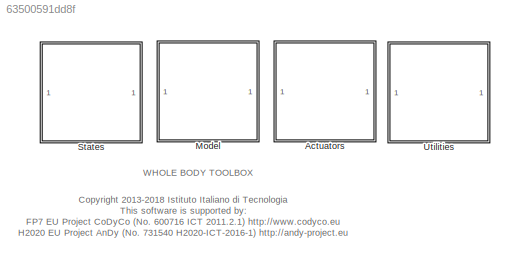
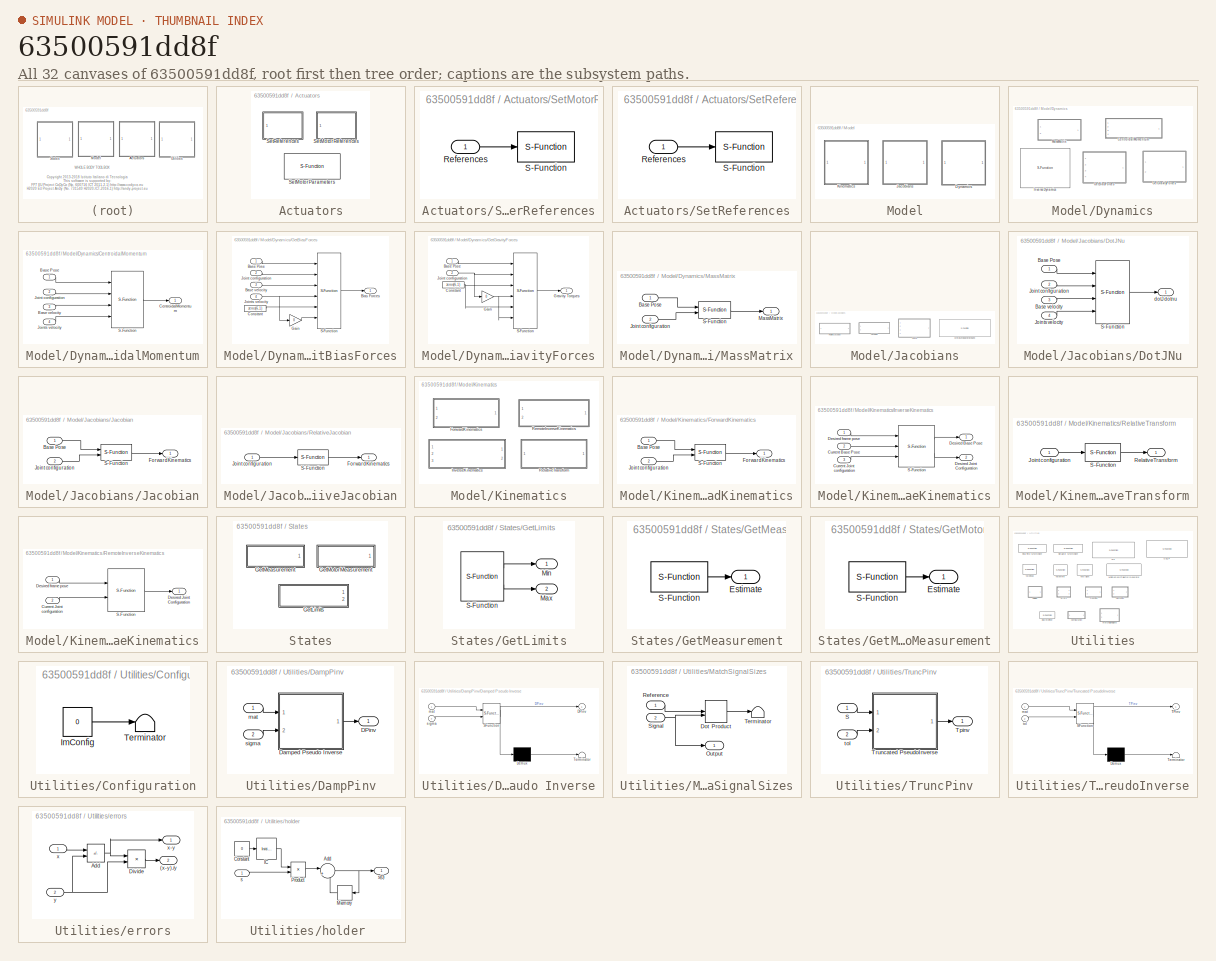
[diagram: thumbnail index - all 32 canvases of the model, root first then tree order]
MODEL slx_63500591dd8f
KIND library
CONFIG AbsTol = auto
CONFIG EnableMultiTasking = on
CONFIG FixedStep = auto
CONFIG MaxStep = auto
CONFIG MinStep = auto
CONFIG RelTol = 1e-3
CONFIG SampleTimeConstraint = Unconstrained
CONFIG SolverName = ode45
CONFIG StartTime = 0.0
CONFIG StopTime = 10.0
BLOCK [SubSystem] Actuators
  Ports = []
  RequestExecContextInheritance = off
BLOCK [S-Function] Actuators/SetMotorParameters
  EnableBusSupport = off
  FunctionName = BlockFactory
  Parameters = 'SetMotorParameters','WBToolbox',WBTConfigParameters,configBlockAbsName,readP,readI,readD,pidType,setKTau,kTau,setBemf,bemf
  Ports = [1, 1]
  SFcnIsStateOwnerBlock = off
  SFunctionDeploymentMode = off
BLOCK [SubSystem] Actuators/SetMotorReferences
  Ports = [1]
  RequestExecContextInheritance = off
BLOCK [Inport] Actuators/SetMotorReferences/References
BLOCK [S-Function] Actuators/SetMotorReferences/S-Function
  EnableBusSupport = off
  FunctionName = BlockFactory
  Parameters = 'SetReferences','WBToolbox',WBTConfigParameters,configBlockAbsName,controlType,refSpeed
  Ports = [1]
  SFcnIsStateOwnerBlock = off
  SFunctionDeploymentMode = off
BLOCK [SubSystem] Actuators/SetReferences
  Ports = [1]
  RequestExecContextInheritance = off
BLOCK [Inport] Actuators/SetReferences/References
BLOCK [S-Function] Actuators/SetReferences/S-Function
  EnableBusSupport = off
  FunctionName = BlockFactory
  Parameters = 'SetReferences','WBToolbox',WBTConfigParameters,configBlockAbsName,controlType,refTrajectory
  Ports = [1]
  SFcnIsStateOwnerBlock = off
  SFunctionDeploymentMode = off
BLOCK [SubSystem] Model
  Ports = []
  RequestExecContextInheritance = off
BLOCK [SubSystem] Model/Dynamics
  Ports = []
  RequestExecContextInheritance = off
BLOCK [SubSystem] Model/Dynamics/CentroidalMomentum
  Ports = [4, 1]
  RequestExecContextInheritance = off
BLOCK [Inport] Model/Dynamics/CentroidalMomentum/Base Pose
BLOCK [Inport] Model/Dynamics/CentroidalMomentum/Base velocity
  Port = 3
BLOCK [Outport] Model/Dynamics/CentroidalMomentum/CentroidalMomentum
BLOCK [Inport] Model/Dynamics/CentroidalMomentum/Joint configuration
  Port = 2
BLOCK [Inport] Model/Dynamics/CentroidalMomentum/Joints velocity
  Port = 4
BLOCK [S-Function] Model/Dynamics/CentroidalMomentum/S-Function
  EnableBusSupport = off
  FunctionName = BlockFactory
  Parameters = 'CentroidalMomentum','WBToolbox',WBTConfigParameters,configBlockAbsName
  Ports = [4, 1]
  SFcnIsStateOwnerBlock = off
  SFunctionDeploymentMode = off
BLOCK [SubSystem] Model/Dynamics/GetBiasForces
  Ports = [4, 1]
  RequestExecContextInheritance = off
BLOCK [Inport] Model/Dynamics/GetBiasForces/Base Pose
BLOCK [Inport] Model/Dynamics/GetBiasForces/Base velocity
  Port = 3
BLOCK [Outport] Model/Dynamics/GetBiasForces/Bias Forces
BLOCK [Constant] Model/Dynamics/GetBiasForces/Constant
  Value = zeros(6,1)
BLOCK [Gain] Model/Dynamics/GetBiasForces/Gain
  Gain = 0
BLOCK [Inport] Model/Dynamics/GetBiasForces/Joint configuration
  Port = 2
BLOCK [Inport] Model/Dynamics/GetBiasForces/Joints velocity
  Port = 4
BLOCK [S-Function] Model/Dynamics/GetBiasForces/S-Function
  EnableBusSupport = off
  FunctionName = BlockFactory
  Parameters = 'InverseDynamics','WBToolbox',WBTConfigParameters,configBlockAbsName
  Ports = [6, 1]
  SFcnIsStateOwnerBlock = off
  SFunctionDeploymentMode = off
BLOCK [SubSystem] Model/Dynamics/GetGravityForces
  Ports = [2, 1]
  RequestExecContextInheritance = off
BLOCK [Inport] Model/Dynamics/GetGravityForces/Base Pose
BLOCK [Constant] Model/Dynamics/GetGravityForces/Constant
  Value = zeros(6,1)
BLOCK [Gain] Model/Dynamics/GetGravityForces/Gain
  Gain = 0
BLOCK [Outport] Model/Dynamics/GetGravityForces/Gravity Torques
BLOCK [Inport] Model/Dynamics/GetGravityForces/Joint configuration
  Port = 2
BLOCK [S-Function] Model/Dynamics/GetGravityForces/S-Function
  EnableBusSupport = off
  FunctionName = BlockFactory
  Parameters = 'InverseDynamics','WBToolbox',WBTConfigParameters,configBlockAbsName
  Ports = [6, 1]
  SFcnIsStateOwnerBlock = off
  SFunctionDeploymentMode = off
BLOCK [S-Function] Model/Dynamics/InverseDynamics
  EnableBusSupport = off
  FunctionName = BlockFactory
  Parameters = 'InverseDynamics','WBToolbox',WBTConfigParameters,configBlockAbsName
  Ports = [6, 1]
  SFcnIsStateOwnerBlock = off
  SFunctionDeploymentMode = off
BLOCK [SubSystem] Model/Dynamics/MassMatrix
  Ports = [2, 1]
  RequestExecContextInheritance = off
BLOCK [Inport] Model/Dynamics/MassMatrix/Base Pose
BLOCK [Inport] Model/Dynamics/MassMatrix/Joint configuration
  Port = 2
BLOCK [Outport] Model/Dynamics/MassMatrix/MassMatrix
BLOCK [S-Function] Model/Dynamics/MassMatrix/S-Function
  EnableBusSupport = off
  FunctionName = BlockFactory
  Parameters = 'MassMatrix','WBToolbox',WBTConfigParameters,configBlockAbsName
  Ports = [2, 1]
  SFcnIsStateOwnerBlock = off
  SFunctionDeploymentMode = off
BLOCK [SubSystem] Model/Jacobians
  Ports = []
  RequestExecContextInheritance = off
BLOCK [S-Function] Model/Jacobians/CentroidalTotalMomentumMatrix
  EnableBusSupport = off
  FunctionName = BlockFactory
  Parameters = 'CentroidalTotalMomentumMatrix', 'WBToolbox', WBTConfigParameters, configBlockAbsName
  Ports = [2, 1]
  SFcnIsStateOwnerBlock = off
  SFunctionDeploymentMode = off
BLOCK [SubSystem] Model/Jacobians/DotJNu
  Ports = [4, 1]
  RequestExecContextInheritance = off
BLOCK [Inport] Model/Jacobians/DotJNu/Base Pose
BLOCK [Inport] Model/Jacobians/DotJNu/Base velocity
  Port = 3
BLOCK [Inport] Model/Jacobians/DotJNu/Joint configuration
  Port = 2
BLOCK [Inport] Model/Jacobians/DotJNu/Joints velocity
  Port = 4
BLOCK [S-Function] Model/Jacobians/DotJNu/S-Function
  EnableBusSupport = off
  FunctionName = BlockFactory
  Parameters = 'DotJNu','WBToolbox',WBTConfigParameters,configBlockAbsName,frameName
  Ports = [4, 1]
  SFcnIsStateOwnerBlock = off
  SFunctionDeploymentMode = off
BLOCK [Outport] Model/Jacobians/DotJNu/dotJ dotnu
BLOCK [SubSystem] Model/Jacobians/Jacobian
  Ports = [2, 1]
  RequestExecContextInheritance = off
BLOCK [Inport] Model/Jacobians/Jacobian/Base Pose
BLOCK [Outport] Model/Jacobians/Jacobian/ForwardKinematics
BLOCK [Inport] Model/Jacobians/Jacobian/Joint configuration
  Port = 2
BLOCK [S-Function] Model/Jacobians/Jacobian/S-Function
  EnableBusSupport = off
  FunctionName = BlockFactory
  Parameters = 'Jacobian','WBToolbox',WBTConfigParameters,configBlockAbsName,frameName
  Ports = [2, 1]
  SFcnIsStateOwnerBlock = off
  SFunctionDeploymentMode = off
BLOCK [SubSystem] Model/Jacobians/RelativeJacobian
  Ports = [1, 1]
  RequestExecContextInheritance = off
BLOCK [Outport] Model/Jacobians/RelativeJacobian/ForwardKinematics
BLOCK [Inport] Model/Jacobians/RelativeJacobian/Joint configuration
BLOCK [S-Function] Model/Jacobians/RelativeJacobian/S-Function
  EnableBusSupport = off
  FunctionName = BlockFactory
  Parameters = 'RelativeJacobian','WBToolbox',WBTConfigParameters,configBlockAbsName,frameName1,frameName2
  Ports = [1, 1]
  SFcnIsStateOwnerBlock = off
  SFunctionDeploymentMode = off
BLOCK [SubSystem] Model/Kinematics
  Ports = []
  RequestExecContextInheritance = off
BLOCK [SubSystem] Model/Kinematics/ForwardKinematics
  Ports = [2, 1]
  RequestExecContextInheritance = off
BLOCK [Inport] Model/Kinematics/ForwardKinematics/Base Pose
BLOCK [Outport] Model/Kinematics/ForwardKinematics/ForwardKinematics
BLOCK [Inport] Model/Kinematics/ForwardKinematics/Joint configuration
  Port = 2
BLOCK [S-Function] Model/Kinematics/ForwardKinematics/S-Function
  EnableBusSupport = off
  FunctionName = BlockFactory
  Parameters = 'ForwardKinematics','WBToolbox',WBTConfigParameters,configBlockAbsName,frameName
  Ports = [2, 1]
  SFcnIsStateOwnerBlock = off
  SFunctionDeploymentMode = off
BLOCK [SubSystem] Model/Kinematics/InverseKinematics
  Commented = on
  InitFcn = if ~exist('WBT_robotName','var')\n    WBT_robotName = '';\nend\nif ~exist('WBT_modelName','var')\n    WBT_modelName = 'WBT_simulink';\nend\nif ~exist('WBT_wbiFilename','var')\n    WBT_wbiFilename = 'yarpWholeBodyInterface.ini';\nend\nif ~exist('WBT_wbiList','var')\n    WBT_wbiList = 'ROBOT_TORQUE_CONTROL_JOINTS';\nend
  Ports = [3, 2]
  RequestExecContextInheritance = off
BLOCK [Inport] Model/Kinematics/InverseKinematics/Current Base Pose
  Port = 2
BLOCK [Inport] Model/Kinematics/InverseKinematics/Current Joint configuration
  Port = 3
BLOCK [Outport] Model/Kinematics/InverseKinematics/Desired Base Pose
BLOCK [Outport] Model/Kinematics/InverseKinematics/Desired Joint Configuration
  Port = 2
BLOCK [Inport] Model/Kinematics/InverseKinematics/Desired frame pose
BLOCK [S-Function] Model/Kinematics/InverseKinematics/S-Function
  EnableBusSupport = off
  FunctionName = WBToolbox
  Parameters = 'InverseKinematics',robotName,localName,wbiFile,wbiList,baseFrame, endEffFrame,optOption
  Ports = [3, 2]
  SFcnIsStateOwnerBlock = off
  SFunctionDeploymentMode = off
BLOCK [SubSystem] Model/Kinematics/RelativeTransform
  Ports = [1, 1]
  RequestExecContextInheritance = off
BLOCK [Inport] Model/Kinematics/RelativeTransform/Joint configuration
BLOCK [Outport] Model/Kinematics/RelativeTransform/RelativeTransform
BLOCK [S-Function] Model/Kinematics/RelativeTransform/S-Function
  EnableBusSupport = off
  FunctionName = BlockFactory
  Parameters = 'RelativeTransform','WBToolbox',WBTConfigParameters,configBlockAbsName,frame1, frame2
  Ports = [1, 1]
  SFcnIsStateOwnerBlock = off
  SFunctionDeploymentMode = off
BLOCK [SubSystem] Model/Kinematics/RemoteInverseKinematics
  Commented = on
  InitFcn = if ~exist('WBT_robotName','var')\n    WBT_robotName = '';\nend\nif ~exist('WBT_modelName','var')\n    WBT_modelName = 'WBT_simulink';\nend\nif ~exist('WBT_wbiFilename','var')\n    WBT_wbiFilename = 'yarpWholeBodyInterface.ini';\nend\nif ~exist('WBT_wbiList','var')\n    WBT_wbiList = 'ROBOT_TORQUE_CONTROL_JOINTS';\nend
  Ports = [2, 1]
  RequestExecContextInheritance = off
BLOCK [Inport] Model/Kinematics/RemoteInverseKinematics/Current Joint configuration
  Port = 2
BLOCK [Outport] Model/Kinematics/RemoteInverseKinematics/Desired Joint Configuration
BLOCK [Inport] Model/Kinematics/RemoteInverseKinematics/Desired frame pose
BLOCK [S-Function] Model/Kinematics/RemoteInverseKinematics/S-Function
  EnableBusSupport = off
  FunctionName = WBToolbox
  Parameters = 'RemoteInverseKinematics',solverName, dofs, optOption
  Ports = [2, 1]
  SFcnIsStateOwnerBlock = off
  SFunctionDeploymentMode = off
BLOCK [SubSystem] States
  Ports = []
  RequestExecContextInheritance = off
BLOCK [SubSystem] States/GetLimits
  Ports = [0, 2]
  RequestExecContextInheritance = off
BLOCK [Outport] States/GetLimits/Max
  Port = 2
BLOCK [Outport] States/GetLimits/Min
BLOCK [S-Function] States/GetLimits/S-Function
  EnableBusSupport = off
  FunctionName = BlockFactory
  Parameters = 'GetLimits','WBToolbox',WBTConfigParameters,configBlockAbsName,limitsType
  Ports = [0, 2]
  SFcnIsStateOwnerBlock = off
  SFunctionDeploymentMode = off
BLOCK [SubSystem] States/GetMeasurement
  Ports = [0, 1]
  RequestExecContextInheritance = off
BLOCK [Outport] States/GetMeasurement/Estimate
BLOCK [S-Function] States/GetMeasurement/S-Function
  EnableBusSupport = off
  FunctionName = BlockFactory
  Parameters = 'GetMeasurement','WBToolbox',WBTConfigParameters,configBlockAbsName,measuredType
  Ports = [0, 1]
  SFcnIsStateOwnerBlock = off
  SFunctionDeploymentMode = off
BLOCK [SubSystem] States/GetMotorMeasurement
  Ports = [0, 1]
  RequestExecContextInheritance = off
BLOCK [Outport] States/GetMotorMeasurement/Estimate
BLOCK [S-Function] States/GetMotorMeasurement/S-Function
  EnableBusSupport = off
  FunctionName = BlockFactory
  Parameters = 'GetMeasurement','WBToolbox',WBTConfigParameters,configBlockAbsName,measuredType
  Ports = [0, 1]
  SFcnIsStateOwnerBlock = off
  SFunctionDeploymentMode = off
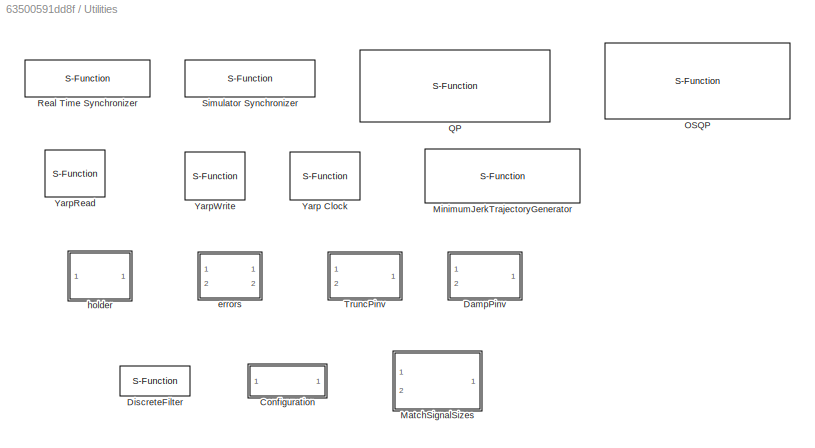
BLOCK [SubSystem] Utilities
  Ports = []
  RequestExecContextInheritance = off
BLOCK [SubSystem] Utilities/Configuration
  InitFcn = source = get_param(gcb,'ConfigSource');\n\nif strcmp(source, 'Workspace')\n    object = get_param(gcb,'ConfigObject');\n    WBToolbox.ConfigurationToMask(gcb, object);\nend\n\nWBToolbox.MaskToConfiguration(gcb);\n\nclear object source
  Ports = []
  RequestExecContextInheritance = off
BLOCK [Constant] Utilities/Configuration/ImConfig
  Value = 0
BLOCK [Terminator] Utilities/Configuration/Terminator
BLOCK [SubSystem] Utilities/DampPinv
  Ports = [2, 1]
  RequestExecContextInheritance = off
BLOCK [Outport] Utilities/DampPinv/DPinv
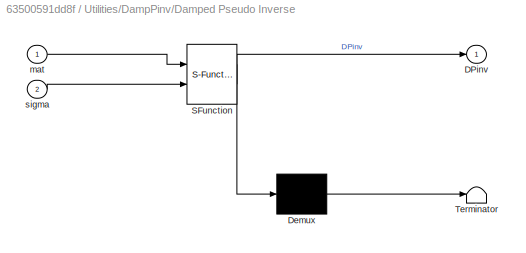
BLOCK [SubSystem] Utilities/DampPinv/Damped Pseudo Inverse
  ErrorFcn = Stateflow.Translate.translate
  PermitHierarchicalResolution = ExplicitOnly
  Ports = [2, 1]
  RequestExecContextInheritance = off
  SFBlockType = MATLAB Function
  TreatAsAtomicUnit = on
BLOCK [Demux] Utilities/DampPinv/Damped Pseudo Inverse/ Demux 
  Outputs = 1
  Ports = [1, 1]
BLOCK [S-Function] Utilities/DampPinv/Damped Pseudo Inverse/ SFunction 
  EnableBusSupport = off
  FunctionName = sf_sfun
  PortCounts = [2 2]
  Ports = [2, 2]
  SFcnIsStateOwnerBlock = off
  SFunctionDeploymentMode = off
  Tag = Stateflow S-Function WBToolboxLibrary 6
BLOCK [Terminator] Utilities/DampPinv/Damped Pseudo Inverse/ Terminator 
BLOCK [Outport] Utilities/DampPinv/Damped Pseudo Inverse/DPinv
BLOCK [Inport] Utilities/DampPinv/Damped Pseudo Inverse/mat
BLOCK [Inport] Utilities/DampPinv/Damped Pseudo Inverse/sigma
  Port = 2
BLOCK [Inport] Utilities/DampPinv/mat
BLOCK [Inport] Utilities/DampPinv/sigma
  Port = 2
BLOCK [S-Function] Utilities/DiscreteFilter
  EnableBusSupport = off
  FunctionName = BlockFactory
  Parameters = 'DiscreteFilter','WBToolbox',filterDataStruct
  Ports = [1, 1]
  SFcnIsStateOwnerBlock = off
  SFunctionDeploymentMode = off
BLOCK [SubSystem] Utilities/MatchSignalSizes
  Ports = [2, 1]
  RequestExecContextInheritance = off
BLOCK [DotProduct] Utilities/MatchSignalSizes/Dot Product
  OutDataTypeStr = Inherit: Inherit via internal rule
BLOCK [Outport] Utilities/MatchSignalSizes/Output
BLOCK [Inport] Utilities/MatchSignalSizes/Reference
BLOCK [Inport] Utilities/MatchSignalSizes/Signal
  Port = 2
BLOCK [Terminator] Utilities/MatchSignalSizes/Terminator
BLOCK [S-Function] Utilities/MinimumJerkTrajectoryGenerator
  EnableBusSupport = off
  FunctionName = BlockFactory
  Parameters = 'MinimumJerkTrajectoryGenerator','WBToolbox',sampleTime,settlingTime,firstDerivatives,secondDerivatives,explicitInitialValue,externalSettlingTime,resetOnSettlingTime
  Ports = [1, 3]
  SFcnIsStateOwnerBlock = off
  SFunctionDeploymentMode = off
BLOCK [S-Function] Utilities/OSQP
  EnableBusSupport = off
  FunctionName = BlockFactory
  Parameters = 'OSQP','WBToolbox',lbA,ubA,lb,ub,computeObjVal,stopIfFails,adaptiveRho,polish,maxIterations
  Ports = [4, 2]
  SFcnIsStateOwnerBlock = off
  SFunctionDeploymentMode = off
BLOCK [S-Function] Utilities/QP
  EnableBusSupport = off
  FunctionName = BlockFactory
  Parameters = 'QpOases','WBToolbox',lbA,ubA,lb,ub,computeObjVal,stopIfFails
  Ports = [4, 2]
  SFcnIsStateOwnerBlock = off
  SFunctionDeploymentMode = off
BLOCK [S-Function] Utilities/Real Time Synchronizer
  EnableBusSupport = off
  FunctionName = BlockFactory
  Parameters = 'RealTimeSynchronizer','WBToolbox',period
  Ports = []
  SFcnIsStateOwnerBlock = off
  SFunctionDeploymentMode = off
BLOCK [S-Function] Utilities/Simulator Synchronizer
  EnableBusSupport = off
  FunctionName = BlockFactory
  Parameters = 'SimulatorSynchronizer','WBToolbox',period, serverPortName, clientPortName
  Ports = []
  SFcnIsStateOwnerBlock = off
  SFunctionDeploymentMode = off
BLOCK [SubSystem] Utilities/TruncPinv
  Ports = [2, 1]
  RequestExecContextInheritance = off
BLOCK [Inport] Utilities/TruncPinv/S
BLOCK [Outport] Utilities/TruncPinv/Tpinv
BLOCK [SubSystem] Utilities/TruncPinv/Truncated PseudoInverse
  ErrorFcn = Stateflow.Translate.translate
  PermitHierarchicalResolution = ExplicitOnly
  Ports = [2, 1]
  RequestExecContextInheritance = off
  SFBlockType = MATLAB Function
  TreatAsAtomicUnit = on
BLOCK [Demux] Utilities/TruncPinv/Truncated PseudoInverse/ Demux 
  Outputs = 1
  Ports = [1, 1]
BLOCK [S-Function] Utilities/TruncPinv/Truncated PseudoInverse/ SFunction 
  EnableBusSupport = off
  FunctionName = sf_sfun
  PortCounts = [2 2]
  Ports = [2, 2]
  SFcnIsStateOwnerBlock = off
  SFunctionDeploymentMode = off
  Tag = Stateflow S-Function WBToolboxLibrary 7
BLOCK [Terminator] Utilities/TruncPinv/Truncated PseudoInverse/ Terminator 
BLOCK [Outport] Utilities/TruncPinv/Truncated PseudoInverse/TPinv
BLOCK [Inport] Utilities/TruncPinv/Truncated PseudoInverse/mat
BLOCK [Inport] Utilities/TruncPinv/Truncated PseudoInverse/tol
  Port = 2
BLOCK [Inport] Utilities/TruncPinv/tol
  Port = 2
BLOCK [S-Function] Utilities/Yarp Clock
  EnableBusSupport = off
  FunctionName = BlockFactory
  Parameters = 'YarpClock','WBToolbox'
  Ports = [0, 1]
  SFcnIsStateOwnerBlock = off
  SFunctionDeploymentMode = off
BLOCK [S-Function] Utilities/YarpRead
  EnableBusSupport = off
  FunctionName = BlockFactory
  Parameters = 'YarpRead','WBToolbox',portName,signalSize,blocking,timestamp,autoconnect,errorOnConnection,timeout
  Ports = [0, 2]
  SFcnIsStateOwnerBlock = off
  SFunctionDeploymentMode = off
BLOCK [S-Function] Utilities/YarpWrite
  EnableBusSupport = off
  FunctionName = BlockFactory
  Parameters = 'YarpWrite','WBToolbox',portName,autoconnect,errorOnConnection
  Ports = [1]
  SFcnIsStateOwnerBlock = off
  SFunctionDeploymentMode = off
BLOCK [SubSystem] Utilities/errors
  Ports = [2, 2]
  RequestExecContextInheritance = off
BLOCK [Outport] Utilities/errors/(x-y).//y
  Port = 2
BLOCK [Sum] Utilities/errors/Add
  IconShape = rectangular
  Inputs = +-
  Ports = [2, 1]
BLOCK [Product] Utilities/errors/Divide
  Inputs = */
  Ports = [2, 1]
BLOCK [Inport] Utilities/errors/x
BLOCK [Outport] Utilities/errors/x-y
BLOCK [Inport] Utilities/errors/y
  Port = 2
BLOCK [SubSystem] Utilities/holder 
  Ports = [1, 1]
  RequestExecContextInheritance = off
BLOCK [Sum] Utilities/holder /Add
  Inputs = |++
  Ports = [2, 1]
BLOCK [Constant] Utilities/holder /Constant
  Value = 0
BLOCK [InitialCondition] Utilities/holder /IC
BLOCK [Memory] Utilities/holder /Memory
  InheritSampleTime = on
BLOCK [Product] Utilities/holder /Product
  Ports = [2, 1]
BLOCK [Inport] Utilities/holder /s
BLOCK [Outport] Utilities/holder /s(0)
ANNOTATION (root): <copyright redacted>
ANNOTATION (root): WHOLE BODY TOOLBOX
LINE Actuators/SetMotorReferences/References:1 -> Actuators/SetMotorReferences/S-Function:1
LINE Actuators/SetReferences/References:1 -> Actuators/SetReferences/S-Function:1
LINE Model/Dynamics/CentroidalMomentum/Base Pose:1 -> Model/Dynamics/CentroidalMomentum/S-Function:1
LINE Model/Dynamics/CentroidalMomentum/Base velocity:1 -> Model/Dynamics/CentroidalMomentum/S-Function:3
LINE Model/Dynamics/CentroidalMomentum/Joint configuration:1 -> Model/Dynamics/CentroidalMomentum/S-Function:2
LINE Model/Dynamics/CentroidalMomentum/Joints velocity:1 -> Model/Dynamics/CentroidalMomentum/S-Function:4
LINE Model/Dynamics/CentroidalMomentum/S-Function:1 -> Model/Dynamics/CentroidalMomentum/CentroidalMomentum:1
LINE Model/Dynamics/GetBiasForces/Base Pose:1 -> Model/Dynamics/GetBiasForces/S-Function:1
LINE Model/Dynamics/GetBiasForces/Base velocity:1 -> Model/Dynamics/GetBiasForces/S-Function:3
LINE Model/Dynamics/GetBiasForces/Constant:1 -> Model/Dynamics/GetBiasForces/S-Function:5
LINE Model/Dynamics/GetBiasForces/Gain:1 -> Model/Dynamics/GetBiasForces/S-Function:6
LINE Model/Dynamics/GetBiasForces/Joint configuration:1 -> Model/Dynamics/GetBiasForces/S-Function:2
NET Model/Dynamics/GetBiasForces/Joints velocity:1 -> Model/Dynamics/GetBiasForces/Gain:1, Model/Dynamics/GetBiasForces/S-Function:4
LINE Model/Dynamics/GetBiasForces/S-Function:1 -> Model/Dynamics/GetBiasForces/Bias Forces:1
LINE Model/Dynamics/GetGravityForces/Base Pose:1 -> Model/Dynamics/GetGravityForces/S-Function:1
NET Model/Dynamics/GetGravityForces/Constant:1 -> Model/Dynamics/GetGravityForces/S-Function:3, Model/Dynamics/GetGravityForces/S-Function:5
NET Model/Dynamics/GetGravityForces/Gain:1 -> Model/Dynamics/GetGravityForces/S-Function:4, Model/Dynamics/GetGravityForces/S-Function:6
NET Model/Dynamics/GetGravityForces/Joint configuration:1 -> Model/Dynamics/GetGravityForces/Gain:1, Model/Dynamics/GetGravityForces/S-Function:2
LINE Model/Dynamics/GetGravityForces/S-Function:1 -> Model/Dynamics/GetGravityForces/Gravity Torques:1
LINE Model/Dynamics/MassMatrix/Base Pose:1 -> Model/Dynamics/MassMatrix/S-Function:1
LINE Model/Dynamics/MassMatrix/Joint configuration:1 -> Model/Dynamics/MassMatrix/S-Function:2
LINE Model/Dynamics/MassMatrix/S-Function:1 -> Model/Dynamics/MassMatrix/MassMatrix:1
LINE Model/Jacobians/DotJNu/Base Pose:1 -> Model/Jacobians/DotJNu/S-Function:1
LINE Model/Jacobians/DotJNu/Base velocity:1 -> Model/Jacobians/DotJNu/S-Function:3
LINE Model/Jacobians/DotJNu/Joint configuration:1 -> Model/Jacobians/DotJNu/S-Function:2
LINE Model/Jacobians/DotJNu/Joints velocity:1 -> Model/Jacobians/DotJNu/S-Function:4
LINE Model/Jacobians/DotJNu/S-Function:1 -> Model/Jacobians/DotJNu/dotJ dotnu:1
LINE Model/Jacobians/Jacobian/Base Pose:1 -> Model/Jacobians/Jacobian/S-Function:1
LINE Model/Jacobians/Jacobian/Joint configuration:1 -> Model/Jacobians/Jacobian/S-Function:2
LINE Model/Jacobians/Jacobian/S-Function:1 -> Model/Jacobians/Jacobian/ForwardKinematics:1
LINE Model/Jacobians/RelativeJacobian/Joint configuration:1 -> Model/Jacobians/RelativeJacobian/S-Function:1
LINE Model/Jacobians/RelativeJacobian/S-Function:1 -> Model/Jacobians/RelativeJacobian/ForwardKinematics:1
LINE Model/Kinematics/ForwardKinematics/Base Pose:1 -> Model/Kinematics/ForwardKinematics/S-Function:1
LINE Model/Kinematics/ForwardKinematics/Joint configuration:1 -> Model/Kinematics/ForwardKinematics/S-Function:2
LINE Model/Kinematics/ForwardKinematics/S-Function:1 -> Model/Kinematics/ForwardKinematics/ForwardKinematics:1
LINE Model/Kinematics/InverseKinematics/Current Base Pose:1 -> Model/Kinematics/InverseKinematics/S-Function:2
LINE Model/Kinematics/InverseKinematics/Current Joint configuration:1 -> Model/Kinematics/InverseKinematics/S-Function:3
LINE Model/Kinematics/InverseKinematics/Desired frame pose:1 -> Model/Kinematics/InverseKinematics/S-Function:1
LINE Model/Kinematics/InverseKinematics/S-Function:1 -> Model/Kinematics/InverseKinematics/Desired Base Pose:1
LINE Model/Kinematics/InverseKinematics/S-Function:2 -> Model/Kinematics/InverseKinematics/Desired Joint Configuration:1
LINE Model/Kinematics/RelativeTransform/Joint configuration:1 -> Model/Kinematics/RelativeTransform/S-Function:1
LINE Model/Kinematics/RelativeTransform/S-Function:1 -> Model/Kinematics/RelativeTransform/RelativeTransform:1
LINE Model/Kinematics/RemoteInverseKinematics/Current Joint configuration:1 -> Model/Kinematics/RemoteInverseKinematics/S-Function:2
LINE Model/Kinematics/RemoteInverseKinematics/Desired frame pose:1 -> Model/Kinematics/RemoteInverseKinematics/S-Function:1
LINE Model/Kinematics/RemoteInverseKinematics/S-Function:1 -> Model/Kinematics/RemoteInverseKinematics/Desired Joint Configuration:1
LINE States/GetMeasurement/S-Function:1 -> States/GetMeasurement/Estimate:1
LINE States/GetMotorMeasurement/S-Function:1 -> States/GetMotorMeasurement/Estimate:1
LINE Utilities/DampPinv/Damped Pseudo Inverse:1 -> Utilities/DampPinv/DPinv:1
LINE Utilities/DampPinv/mat:1 -> Utilities/DampPinv/Damped Pseudo Inverse:1
LINE Utilities/DampPinv/sigma:1 -> Utilities/DampPinv/Damped Pseudo Inverse:2
LINE Utilities/MatchSignalSizes/Dot Product:1 -> Utilities/MatchSignalSizes/Terminator:1
LINE Utilities/MatchSignalSizes/Reference:1 -> Utilities/MatchSignalSizes/Dot Product:1
NET Utilities/MatchSignalSizes/Signal:1 -> Utilities/MatchSignalSizes/Dot Product:2, Utilities/MatchSignalSizes/Output:1
LINE Utilities/TruncPinv/S:1 -> Utilities/TruncPinv/Truncated PseudoInverse:1
LINE Utilities/TruncPinv/Truncated PseudoInverse:1 -> Utilities/TruncPinv/Tpinv:1
LINE Utilities/TruncPinv/tol:1 -> Utilities/TruncPinv/Truncated PseudoInverse:2
NET Utilities/errors/Add:1 -> Utilities/errors/Divide:1, Utilities/errors/x-y:1
LINE Utilities/errors/Divide:1 -> Utilities/errors/(x-y).//y:1
LINE Utilities/errors/x:1 -> Utilities/errors/Add:1
NET Utilities/errors/y:1 -> Utilities/errors/Add:2, Utilities/errors/Divide:2
NET Utilities/holder /Add:1 -> Utilities/holder /Memory:1, Utilities/holder /s(0):1
LINE Utilities/holder /Constant:1 -> Utilities/holder /IC:1
LINE Utilities/holder /IC:1 -> Utilities/holder /Product:1
LINE Utilities/holder /Memory:1 -> Utilities/holder /Add:2
LINE Utilities/holder /Product:1 -> Utilities/holder /Add:1
LINE Utilities/holder /s:1 -> Utilities/holder /Product:2
note: NET lines group one-source signal fan-out (src -> all destinations, sorted); 1:1 wires keep LINE
CHART Utilities/DampPinv/Damped Pseudo Inverse states=1 transitions=1
  STATE_LABEL 'eML_blk_kernel()'
  STATE_LABEL "SCRIPT:\nfunction DPinv  = fcn(mat,sigma)\n% Economody size svd of mat\n[U,S,V] = svd(mat,'econ');\n% Damped version of S with sigma\nS(S>sigma)=S(S>sigma)./((S(S>sigma)).^2+sigma^2);\n% Damped pseudoinverse\nDPinv = V*pinv(S)*U';"
CHART Utilities/TruncPinv/Truncated PseudoInverse states=1 transitions=1
  STATE_LABEL 'eML_blk_kernel()'
  STATE_LABEL "SCRIPT:\nfunction TPinv  = fcn(mat,tol)\n%#codegen\n[U,S,V] = svd(mat,'econ');\n% Setting to zero value\n% Setting to 1/S(i,i) singular values greater than tol\n S(S>tol)=1./S(S>tol);\n TPinv = V*pinv(S)*U';"
